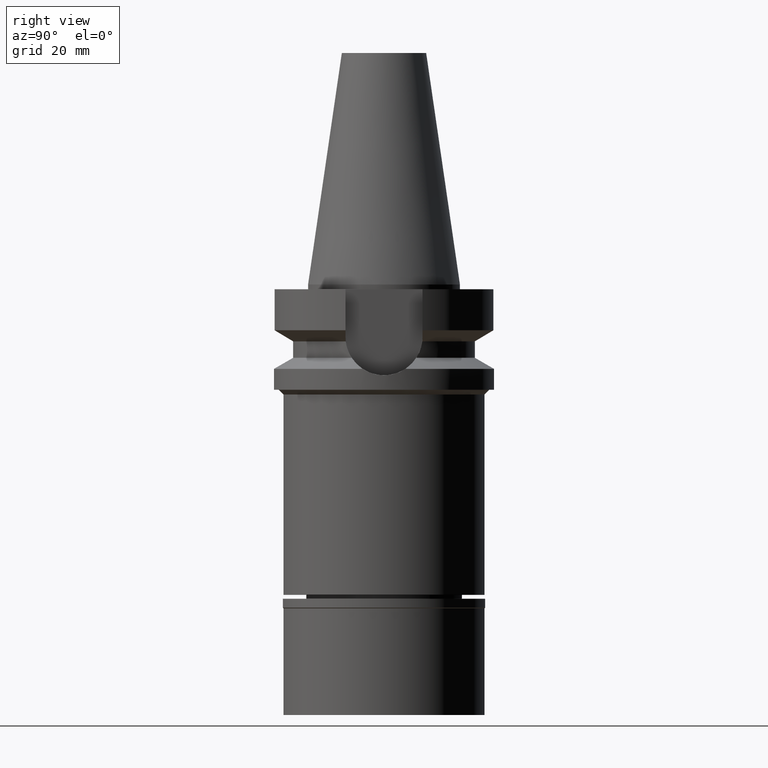
[diagram: clean part render]
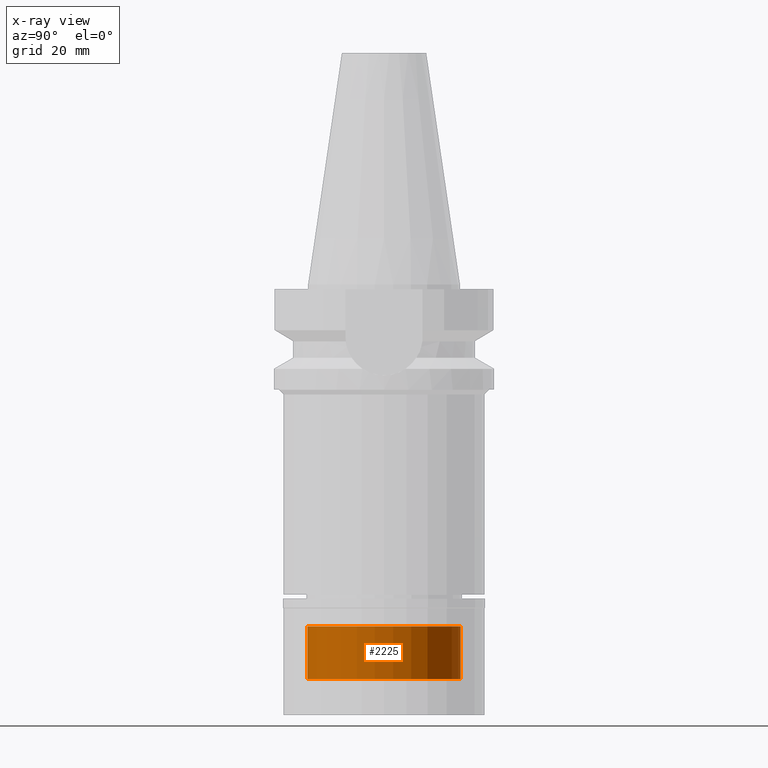
[diagram: x-ray — body ghosted, one internal face saturated and labeled with its STEP entity id]
A machine part, right view, then the same camera in x-ray: the body is ghosted and one INTERNAL B-rep face — a face not visible from any outside direction — is saturated and labeled: STEP entity #2225.
In plain terms, the highlighted cylindrical surface (partial cylindrical patch) has radius 16 mm, axis along (0, 0, -1).
Its self-contained STEP definition (entity closure, byte-faithful):
#26 = DIRECTION ( 'NONE',  ( 0.0000000000000000000, 1.000000000000000000, 0.0000000000000000000 ) ) ;
#61 = ORIENTED_EDGE ( 'NONE', *, *, #2789, .T. ) ;
#198 = AXIS2_PLACEMENT_3D ( 'NONE', #2104, #866, #1834 ) ;
#220 = VERTEX_POINT ( 'NONE', #1139 ) ;
#272 = CARTESIAN_POINT ( 'NONE',  ( 0.0000000000000000000, -16.00000000000000000, -82.50000000000000000 ) ) ;
#281 = DIRECTION ( 'NONE',  ( 0.0000000000000000000, 0.0000000000000000000, -1.000000000000000000 ) ) ;
#331 = AXIS2_PLACEMENT_3D ( 'NONE', #1800, #1004, #2297 ) ;
#349 = VERTEX_POINT ( 'NONE', #272 ) ;
#527 = VECTOR ( 'NONE', #281, 1000.000000000000000 ) ;
#681 = CARTESIAN_POINT ( 'NONE',  ( 0.0000000000000000000, 16.00000000000000000, -82.50000000000000000 ) ) ;
#718 = CIRCLE ( 'NONE', #1888, 16.00000000000000000 ) ;
#727 = CARTESIAN_POINT ( 'NONE',  ( 0.0000000000000000000, 0.0000000000000000000, -71.50000000000000000 ) ) ;
#866 = DIRECTION ( 'NONE',  ( 0.0000000000000000000, 0.0000000000000000000, -1.000000000000000000 ) ) ;
#1004 = DIRECTION ( 'NONE',  ( 0.0000000000000000000, 0.0000000000000000000, 1.000000000000000000 ) ) ;
#1093 = EDGE_CURVE ( 'NONE', #2080, #349, #2648, .T. ) ;
#1139 = CARTESIAN_POINT ( 'NONE',  ( 0.0000000000000000000, 16.00000000000000000, -71.50000000000000000 ) ) ;
#1156 = ORIENTED_EDGE ( 'NONE', *, *, #1093, .T. ) ;
#1418 = EDGE_CURVE ( 'NONE', #349, #2748, #2239, .T. ) ;
#1429 = ORIENTED_EDGE ( 'NONE', *, *, #2442, .F. ) ;
#1442 = LINE ( 'NONE', #1928, #2678 ) ;
#1663 = DIRECTION ( 'NONE',  ( 0.0000000000000000000, 0.0000000000000000000, -1.000000000000000000 ) ) ;
#1800 = CARTESIAN_POINT ( 'NONE',  ( 0.0000000000000000000, 0.0000000000000000000, -82.50000000000000000 ) ) ;
#1834 = DIRECTION ( 'NONE',  ( 0.0000000000000000000, -1.000000000000000000, 0.0000000000000000000 ) ) ;
#1888 = AXIS2_PLACEMENT_3D ( 'NONE', #727, #2391, #26 ) ;
#1928 = CARTESIAN_POINT ( 'NONE',  ( 0.0000000000000000000, 16.00000000000000000, -71.50000000000000000 ) ) ;
#1958 = CARTESIAN_POINT ( 'NONE',  ( 0.0000000000000000000, -16.00000000000000000, -71.50000000000000000 ) ) ;
#2077 = ORIENTED_EDGE ( 'NONE', *, *, #1418, .T. ) ;
#2080 = VERTEX_POINT ( 'NONE', #2790 ) ;
#2104 = CARTESIAN_POINT ( 'NONE',  ( 0.0000000000000000000, 0.0000000000000000000, 0.0000000000000000000 ) ) ;
#2140 = EDGE_LOOP ( 'NONE', ( #61, #1156, #2077, #1429 ) ) ;
#2225 = ADVANCED_FACE ( 'NONE', ( #2355 ), #3043, .T. ) ;
#2239 = CIRCLE ( 'NONE', #331, 16.00000000000000000 ) ;
#2297 = DIRECTION ( 'NONE',  ( 0.0000000000000000000, -1.000000000000000000, 0.0000000000000000000 ) ) ;
#2355 = FACE_OUTER_BOUND ( 'NONE', #2140, .T. ) ;
#2391 = DIRECTION ( 'NONE',  ( 0.0000000000000000000, 0.0000000000000000000, -1.000000000000000000 ) ) ;
#2442 = EDGE_CURVE ( 'NONE', #220, #2748, #1442, .T. ) ;
#2648 = LINE ( 'NONE', #1958, #527 ) ;
#2678 = VECTOR ( 'NONE', #1663, 1000.000000000000000 ) ;
#2748 = VERTEX_POINT ( 'NONE', #681 ) ;
#2789 = EDGE_CURVE ( 'NONE', #220, #2080, #718, .T. ) ;
#2790 = CARTESIAN_POINT ( 'NONE',  ( 0.0000000000000000000, -16.00000000000000000, -71.50000000000000000 ) ) ;
#3043 = CYLINDRICAL_SURFACE ( 'NONE', #198, 16.00000000000000000 ) ;